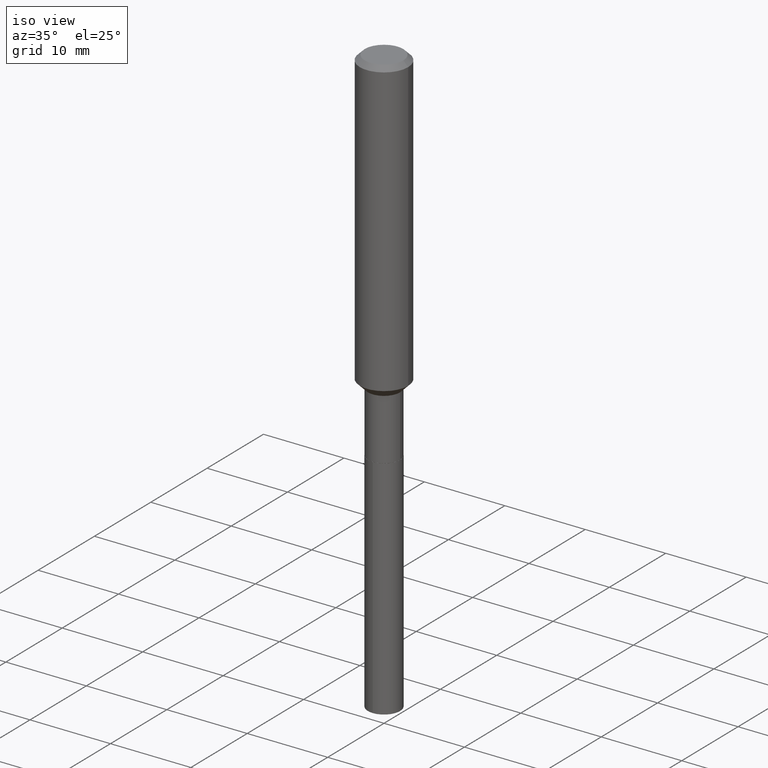
[diagram: clean part render]
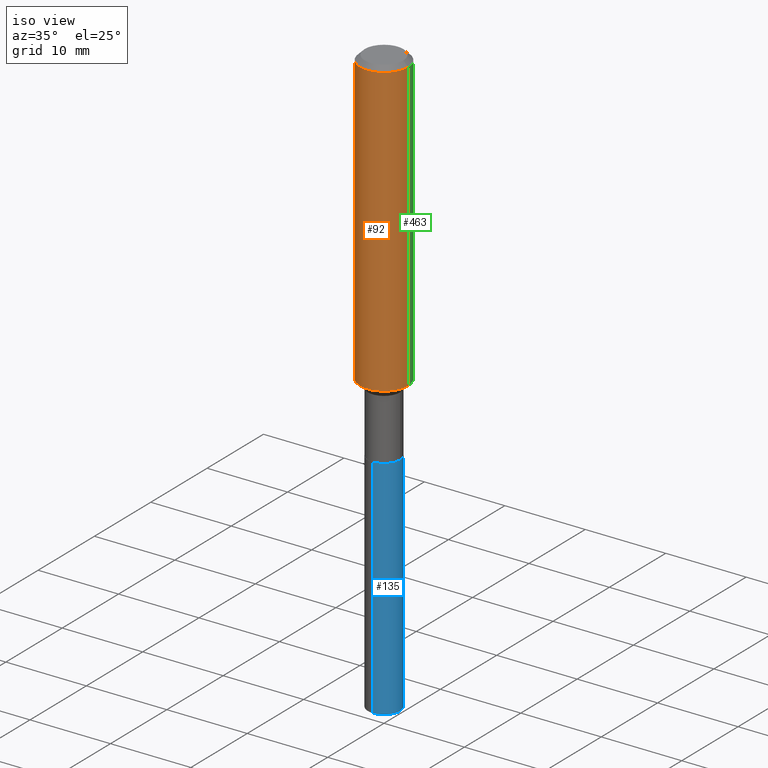
[diagram: same view with three faces highlighted in distinct colors, each labeled with its STEP entity id]
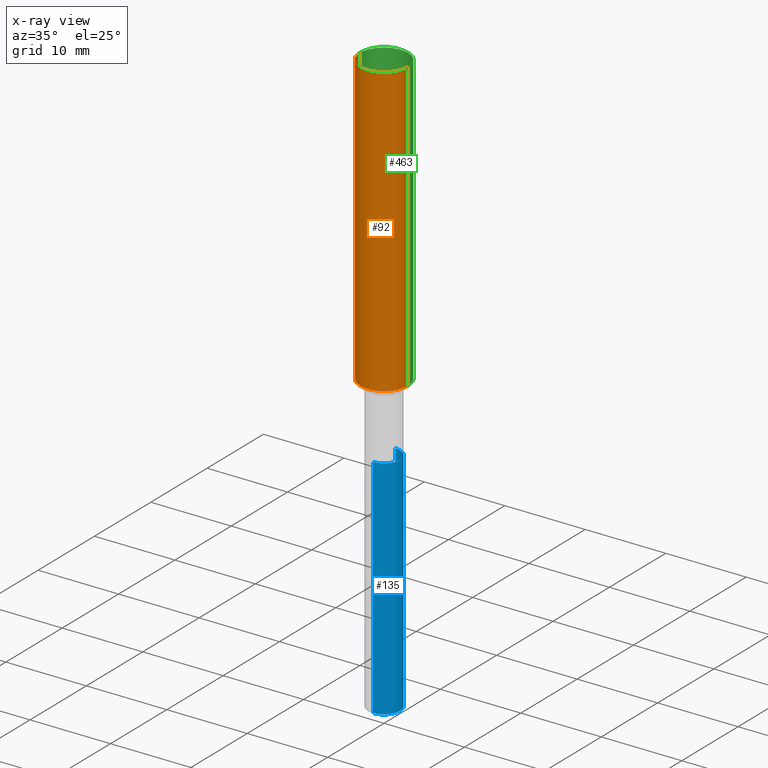
[diagram: x-ray of the same camera — body ghosted, the three highlighted faces saturated]
A machine part, iso view with three faces highlighted in distinct colors.
The next image is the same camera in x-ray (body ghosted, the three faces saturated) — at least one of them is partly hidden behind the body in this view.
Their STEP definitions:

[orange] entity #92 — the highlighted cylindrical surface (edge-blend (fillet) strip) has radius 2.9997 mm, axis along (-0, 0, 1).
#3 = LINE ( 'NONE', #5, #242 ) ;
#5 = CARTESIAN_POINT ( 'NONE',  ( 0.1181000000000000799, -8.246878922347486570E-16, 5.758764772215004644E-30 ) ) ;
#26 = CARTESIAN_POINT ( 'NONE',  ( 0.1180999999999999966, -9.071566814582237199E-16, -0.02362000000000014435 ) ) ;
#35 = CARTESIAN_POINT ( 'NONE',  ( -0.1180999999999999966, -1.703817089993642645E-15, -0.02362000000000014435 ) ) ;
#43 = ORIENTED_EDGE ( 'NONE', *, *, #443, .F. ) ;
#48 = DIRECTION ( 'NONE',  ( -2.445468806185136597E-29, 3.491481338843145583E-15, 1.000000000000000000 ) ) ;
#72 = ORIENTED_EDGE ( 'NONE', *, *, #130, .T. ) ;
#79 = EDGE_LOOP ( 'NONE', ( #378, #72, #444, #43 ) ) ;
#86 = DIRECTION ( 'NONE',  ( 1.000000000000000000, -6.982962677686266711E-15, 4.876176775795936353E-29 ) ) ;
#88 = CARTESIAN_POINT ( 'NONE',  ( 0.000000000000000000, 0.000000000000000000, 0.000000000000000000 ) ) ;
#92 = ADVANCED_FACE ( 'NONE', ( #353 ), #393, .T. ) ;
#97 = AXIS2_PLACEMENT_3D ( 'NONE', #88, #48, #86 ) ;
#114 = DIRECTION ( 'NONE',  ( -2.445468806185136597E-29, 3.491481338843145583E-15, 1.000000000000000000 ) ) ;
#116 = CIRCLE ( 'NONE', #475, 0.1180999999999999966 ) ;
#130 = EDGE_CURVE ( 'NONE', #486, #446, #150, .T. ) ;
#150 = CIRCLE ( 'NONE', #231, 0.1181000000000001632 ) ;
#154 = CARTESIAN_POINT ( 'NONE',  ( -0.1181000000000000799, 8.391509709326788873E-16, -5.809262341591047988E-30 ) ) ;
#161 = DIRECTION ( 'NONE',  ( -2.445468806185136877E-29, 3.491481338843145188E-15, 1.000000000000000000 ) ) ;
#174 = CARTESIAN_POINT ( 'NONE',  ( 0.1181000000000001632, -5.828155224863917251E-15, -1.433049999999999713 ) ) ;
#193 = LINE ( 'NONE', #154, #370 ) ;
#209 = DIRECTION ( 'NONE',  ( -2.445468806185136597E-29, 3.491481338843145583E-15, 1.000000000000000000 ) ) ;
#231 = AXIS2_PLACEMENT_3D ( 'NONE', #247, #209, #359 ) ;
#242 = VECTOR ( 'NONE', #161, 39.37007874015748143 ) ;
#247 = CARTESIAN_POINT ( 'NONE',  ( 3.504479072703608597E-29, -5.003467332629168988E-15, -1.433049999999999713 ) ) ;
#276 = VERTEX_POINT ( 'NONE', #26 ) ;
#277 = DIRECTION ( 'NONE',  ( -2.445468806185136877E-29, 3.491481338843145188E-15, 1.000000000000000000 ) ) ;
#353 = FACE_OUTER_BOUND ( 'NONE', #79, .T. ) ;
#359 = DIRECTION ( 'NONE',  ( 1.000000000000000000, -6.982962677686270655E-15, 0.000000000000000000 ) ) ;
#360 = EDGE_CURVE ( 'NONE', #446, #276, #3, .T. ) ;
#370 = VECTOR ( 'NONE', #277, 39.37007874015748143 ) ;
#378 = ORIENTED_EDGE ( 'NONE', *, *, #399, .F. ) ;
#382 = DIRECTION ( 'NONE',  ( 1.000000000000000000, -6.982962677686266711E-15, 0.000000000000000000 ) ) ;
#393 = CYLINDRICAL_SURFACE ( 'NONE', #97, 0.1181000000000000799 ) ;
#399 = EDGE_CURVE ( 'NONE', #486, #414, #193, .T. ) ;
#414 = VERTEX_POINT ( 'NONE', #35 ) ;
#440 = CARTESIAN_POINT ( 'NONE',  ( -0.1181000000000001632, -4.164316361696488424E-15, -1.433049999999999713 ) ) ;
#443 = EDGE_CURVE ( 'NONE', #414, #276, #116, .T. ) ;
#444 = ORIENTED_EDGE ( 'NONE', *, *, #360, .T. ) ;
#446 = VERTEX_POINT ( 'NONE', #174 ) ;
#457 = CARTESIAN_POINT ( 'NONE',  ( 5.776197320209328408E-31, -8.246878922347560526E-17, -0.02362000000000014435 ) ) ;
#475 = AXIS2_PLACEMENT_3D ( 'NONE', #457, #114, #382 ) ;
#486 = VERTEX_POINT ( 'NONE', #440 ) ;

[blue] entity #135 — the highlighted cylindrical surface (edge-blend (fillet) strip) has radius 2.0002 mm, axis along (-0, 0, 1).
#6 = VERTEX_POINT ( 'NONE', #11 ) ;
#8 = AXIS2_PLACEMENT_3D ( 'NONE', #290, #367, #366 ) ;
#9 = VECTOR ( 'NONE', #308, 39.37007874015748143 ) ;
#11 = CARTESIAN_POINT ( 'NONE',  ( -5.499083108677227426E-16, -0.07875000000001002032, -2.881979550045322025 ) ) ;
#17 = FACE_OUTER_BOUND ( 'NONE', #81, .T. ) ;
#28 = DIRECTION ( 'NONE',  ( -6.982962677686264344E-15, -1.000000000000000000, 3.469013325287953293E-15 ) ) ;
#68 = EDGE_CURVE ( 'NONE', #6, #422, #398, .T. ) ;
#74 = AXIS2_PLACEMENT_3D ( 'NONE', #284, #90, #111 ) ;
#81 = EDGE_LOOP ( 'NONE', ( #177, #335, #301, #148 ) ) ;
#85 = AXIS2_PLACEMENT_3D ( 'NONE', #288, #176, #28 ) ;
#90 = DIRECTION ( 'NONE',  ( -2.445392125264201489E-29, 3.491591150286331850E-15, 1.000000000000000000 ) ) ;
#98 = CARTESIAN_POINT ( 'NONE',  ( 5.595524044111494048E-16, 0.07874999999999381106, -1.771300000000000097 ) ) ;
#111 = DIRECTION ( 'NONE',  ( -6.982962677686264344E-15, -1.000000000000000000, 3.469013325287953293E-15 ) ) ;
#118 = LINE ( 'NONE', #351, #9 ) ;
#131 = CARTESIAN_POINT ( 'NONE',  ( -5.499083108677500569E-16, -0.07875000000000617617, -1.771299999999999430 ) ) ;
#135 = ADVANCED_FACE ( 'NONE', ( #17 ), #320, .T. ) ;
#139 = VERTEX_POINT ( 'NONE', #98 ) ;
#148 = ORIENTED_EDGE ( 'NONE', *, *, #68, .F. ) ;
#152 = CARTESIAN_POINT ( 'NONE',  ( -5.499083108677500569E-16, -0.07875000000000617617, -1.771299999999999430 ) ) ;
#176 = DIRECTION ( 'NONE',  ( -2.445392125264201489E-29, 3.491591150286331850E-15, 1.000000000000000000 ) ) ;
#177 = ORIENTED_EDGE ( 'NONE', *, *, #245, .T. ) ;
#243 = DIRECTION ( 'NONE',  ( -2.445392125264201489E-29, 3.491591150286331850E-15, 1.000000000000000000 ) ) ;
#245 = EDGE_CURVE ( 'NONE', #6, #411, #490, .T. ) ;
#284 = CARTESIAN_POINT ( 'NONE',  ( 4.331658896395732410E-29, -6.184460895492863090E-15, -1.771299999999999653 ) ) ;
#288 = CARTESIAN_POINT ( 'NONE',  ( 4.331658896395732410E-29, -6.184460895492863090E-15, -1.771299999999999653 ) ) ;
#290 = CARTESIAN_POINT ( 'NONE',  ( 7.047705921768549734E-29, -1.006249978323511518E-14, -2.881979550045322469 ) ) ;
#301 = ORIENTED_EDGE ( 'NONE', *, *, #480, .F. ) ;
#308 = DIRECTION ( 'NONE',  ( -2.445392125264201489E-29, 3.491591150286331850E-15, 1.000000000000000000 ) ) ;
#320 = CYLINDRICAL_SURFACE ( 'NONE', #74, 0.07875000000000000056 ) ;
#335 = ORIENTED_EDGE ( 'NONE', *, *, #420, .T. ) ;
#351 = CARTESIAN_POINT ( 'NONE',  ( 5.595524044111220905E-16, 0.07874999999999381106, -1.771300000000000097 ) ) ;
#366 = DIRECTION ( 'NONE',  ( -6.982962677686264344E-15, -1.000000000000000000, 6.938026650575906587E-15 ) ) ;
#367 = DIRECTION ( 'NONE',  ( -2.445392125264201489E-29, 3.491591150286331850E-15, 1.000000000000000000 ) ) ;
#380 = CIRCLE ( 'NONE', #85, 0.07875000000000000056 ) ;
#398 = LINE ( 'NONE', #131, #448 ) ;
#411 = VERTEX_POINT ( 'NONE', #419 ) ;
#419 = CARTESIAN_POINT ( 'NONE',  ( 5.595524044111491089E-16, 0.07874999999998993916, -2.881979550045322913 ) ) ;
#420 = EDGE_CURVE ( 'NONE', #411, #139, #118, .T. ) ;
#422 = VERTEX_POINT ( 'NONE', #152 ) ;
#448 = VECTOR ( 'NONE', #243, 39.37007874015748143 ) ;
#480 = EDGE_CURVE ( 'NONE', #422, #139, #380, .T. ) ;
#490 = CIRCLE ( 'NONE', #8, 0.07875000000000000056 ) ;

[green] entity #463 — the highlighted cylindrical surface (edge-blend (fillet) strip) has radius 2.9997 mm, axis along (-0, 0, 1).
#3 = LINE ( 'NONE', #5, #242 ) ;
#5 = CARTESIAN_POINT ( 'NONE',  ( 0.1181000000000000799, -8.246878922347486570E-16, 5.758764772215004644E-30 ) ) ;
#10 = DIRECTION ( 'NONE',  ( 1.000000000000000000, -6.982962677686270655E-15, 0.000000000000000000 ) ) ;
#26 = CARTESIAN_POINT ( 'NONE',  ( 0.1180999999999999966, -9.071566814582237199E-16, -0.02362000000000014435 ) ) ;
#30 = DIRECTION ( 'NONE',  ( -2.445468806185136597E-29, 3.491481338843145583E-15, 1.000000000000000000 ) ) ;
#35 = CARTESIAN_POINT ( 'NONE',  ( -0.1180999999999999966, -1.703817089993642645E-15, -0.02362000000000014435 ) ) ;
#91 = CIRCLE ( 'NONE', #368, 0.1180999999999999966 ) ;
#95 = ORIENTED_EDGE ( 'NONE', *, *, #360, .F. ) ;
#110 = ORIENTED_EDGE ( 'NONE', *, *, #347, .T. ) ;
#136 = FACE_OUTER_BOUND ( 'NONE', #195, .T. ) ;
#154 = CARTESIAN_POINT ( 'NONE',  ( -0.1181000000000000799, 8.391509709326788873E-16, -5.809262341591047988E-30 ) ) ;
#161 = DIRECTION ( 'NONE',  ( -2.445468806185136877E-29, 3.491481338843145188E-15, 1.000000000000000000 ) ) ;
#174 = CARTESIAN_POINT ( 'NONE',  ( 0.1181000000000001632, -5.828155224863917251E-15, -1.433049999999999713 ) ) ;
#184 = AXIS2_PLACEMENT_3D ( 'NONE', #187, #212, #369 ) ;
#187 = CARTESIAN_POINT ( 'NONE',  ( 0.000000000000000000, 0.000000000000000000, 0.000000000000000000 ) ) ;
#193 = LINE ( 'NONE', #154, #370 ) ;
#195 = EDGE_LOOP ( 'NONE', ( #110, #458, #441, #95 ) ) ;
#212 = DIRECTION ( 'NONE',  ( -2.445468806185136597E-29, 3.491481338843145583E-15, 1.000000000000000000 ) ) ;
#233 = CARTESIAN_POINT ( 'NONE',  ( 3.504479072703608597E-29, -5.003467332629168988E-15, -1.433049999999999713 ) ) ;
#242 = VECTOR ( 'NONE', #161, 39.37007874015748143 ) ;
#264 = AXIS2_PLACEMENT_3D ( 'NONE', #233, #340, #10 ) ;
#276 = VERTEX_POINT ( 'NONE', #26 ) ;
#277 = DIRECTION ( 'NONE',  ( -2.445468806185136877E-29, 3.491481338843145188E-15, 1.000000000000000000 ) ) ;
#278 = EDGE_CURVE ( 'NONE', #276, #414, #91, .T. ) ;
#329 = CIRCLE ( 'NONE', #264, 0.1181000000000001632 ) ;
#334 = DIRECTION ( 'NONE',  ( 1.000000000000000000, -6.982962677686266711E-15, 0.000000000000000000 ) ) ;
#340 = DIRECTION ( 'NONE',  ( -2.445468806185136597E-29, 3.491481338843145583E-15, 1.000000000000000000 ) ) ;
#347 = EDGE_CURVE ( 'NONE', #446, #486, #329, .T. ) ;
#360 = EDGE_CURVE ( 'NONE', #446, #276, #3, .T. ) ;
#368 = AXIS2_PLACEMENT_3D ( 'NONE', #415, #30, #334 ) ;
#369 = DIRECTION ( 'NONE',  ( 1.000000000000000000, -6.982962677686266711E-15, 4.876176775795936353E-29 ) ) ;
#370 = VECTOR ( 'NONE', #277, 39.37007874015748143 ) ;
#399 = EDGE_CURVE ( 'NONE', #486, #414, #193, .T. ) ;
#414 = VERTEX_POINT ( 'NONE', #35 ) ;
#415 = CARTESIAN_POINT ( 'NONE',  ( 5.776197320209328408E-31, -8.246878922347560526E-17, -0.02362000000000014435 ) ) ;
#440 = CARTESIAN_POINT ( 'NONE',  ( -0.1181000000000001632, -4.164316361696488424E-15, -1.433049999999999713 ) ) ;
#441 = ORIENTED_EDGE ( 'NONE', *, *, #278, .F. ) ;
#446 = VERTEX_POINT ( 'NONE', #174 ) ;
#458 = ORIENTED_EDGE ( 'NONE', *, *, #399, .T. ) ;
#463 = ADVANCED_FACE ( 'NONE', ( #136 ), #481, .T. ) ;
#481 = CYLINDRICAL_SURFACE ( 'NONE', #184, 0.1181000000000000799 ) ;
#486 = VERTEX_POINT ( 'NONE', #440 ) ;